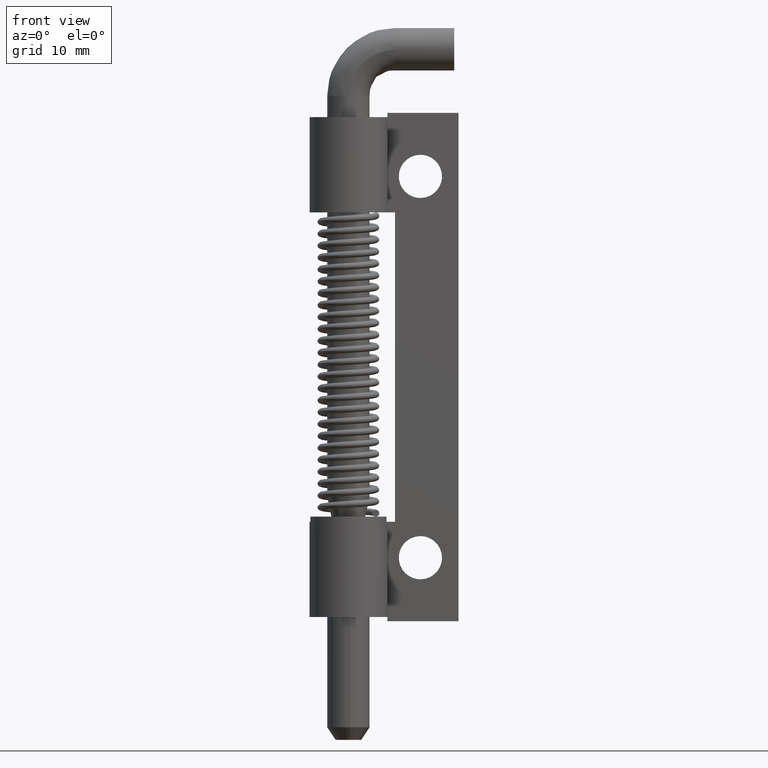
[diagram: clean part render]
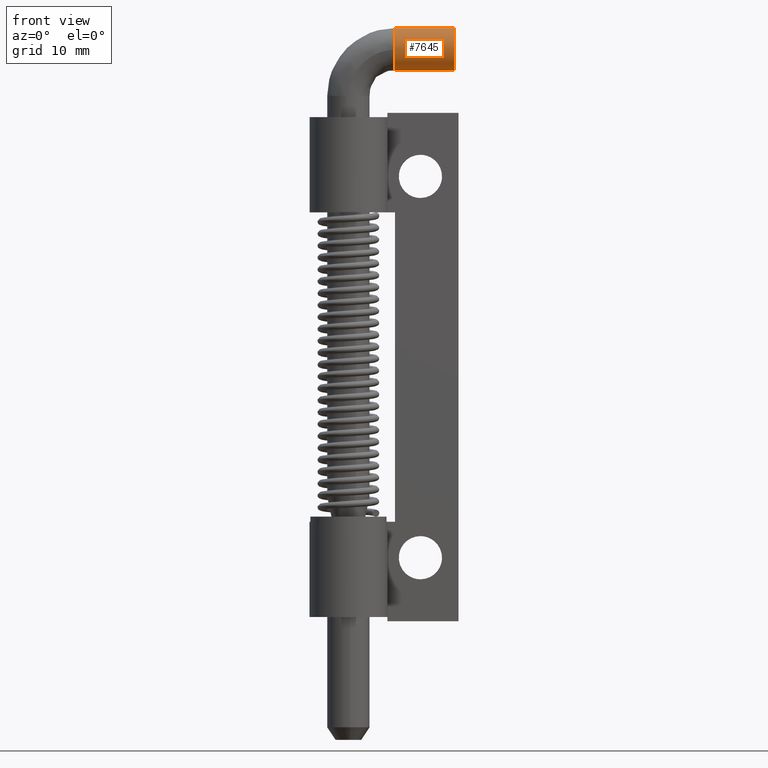
[diagram: same view with one face highlighted and labeled with its STEP entity id]
A machine part, front view. The second image highlights one B-rep face of the part: STEP entity #7645.
In plain terms, the highlighted face is a freeform B-spline surface patch.
Its self-contained STEP definition (entity closure, byte-faithful):
#7498=CARTESIAN_POINT('',(5.324999998981856,1.813435927530718,83.220886439234391));
#7499=CARTESIAN_POINT('',(5.324999998981857,0.092549488296334,85.034322366765110));
#7500=CARTESIAN_POINT('',(5.324999998981856,-1.720886439234384,83.313435927530719));
#7501=CARTESIAN_POINT('',(5.324999998981857,-3.534322366765102,81.592549488296328));
#7502=CARTESIAN_POINT('',(5.324999998981856,-1.813435927530718,79.779113560765609));
#7503=CARTESIAN_POINT('',(5.324999998981857,-0.092549488296334,77.965677633234890));
#7504=CARTESIAN_POINT('',(5.324999998981856,1.720886439234384,79.686564072469281));
#7505=CARTESIAN_POINT('',(12.679375000025461,1.813435927530718,83.220886439234391));
#7506=CARTESIAN_POINT('',(12.679375000025455,0.092549488296334,85.034322366765110));
#7507=CARTESIAN_POINT('',(12.679375000025461,-1.720886439234384,83.313435927530719));
#7508=CARTESIAN_POINT('',(12.679375000025455,-3.534322366765102,81.592549488296328));
#7509=CARTESIAN_POINT('',(12.679375000025461,-1.813435927530718,79.779113560765609));
#7510=CARTESIAN_POINT('',(12.679375000025455,-0.092549488296334,77.965677633234890));
#7511=CARTESIAN_POINT('',(12.679375000025461,1.720886439234384,79.686564072469281));
#7519=(BOUNDED_SURFACE()B_SPLINE_SURFACE(2,1,((#7498,#7505),(#7499,#7506),(#7500,#7507),(#7501,#7508),(#7502,#7509),(#7503,#7510),(#7504,#7511)),.UNSPECIFIED.,.F.,.F.,.U.)B_SPLINE_SURFACE_WITH_KNOTS((3,2,2,3),(2,2),(0.0,4.142135623730949,8.284271247461899,12.426406871192849),(0.0,7.354375001043600),.UNSPECIFIED.)GEOMETRIC_REPRESENTATION_ITEM()RATIONAL_B_SPLINE_SURFACE(((1.0,1.0),(0.707106781186548,0.707106781186548),(1.0,1.0),(0.707106781186548,0.707106781186548),(1.0,1.0),(0.707106781186548,0.707106781186548),(1.0,1.0)))REPRESENTATION_ITEM('')SURFACE());
#7520=CARTESIAN_POINT('',(12.499999999999980,1.813436689613406,83.220885636166088));
#7521=VERTEX_POINT('',#7520);
#7522=CARTESIAN_POINT('',(12.500000000000000,0.0,84.0));
#7523=VERTEX_POINT('',#7522);
#7524=CARTESIAN_POINT('',(12.499999999999984,1.813436689613406,83.220885636166088));
#7525=CARTESIAN_POINT('',(12.500000000000005,1.074085420649231,84.000000000000014));
#7526=CARTESIAN_POINT('',(12.500000000000000,0.0,84.0));
#7534=(BOUNDED_CURVE()B_SPLINE_CURVE(2,(#7524,#7525,#7526),.UNSPECIFIED.,.F.,.U.)B_SPLINE_CURVE_WITH_KNOTS((3,3),(0.871049459827730,1.0),.UNSPECIFIED.)CURVE()GEOMETRIC_REPRESENTATION_ITEM()RATIONAL_B_SPLINE_CURVE((0.853699666318492,0.848925044884842,1.0))REPRESENTATION_ITEM(''));
#7535=EDGE_CURVE('',#7521,#7523,#7534,.T.);
#7536=ORIENTED_EDGE('',*,*,#7535,.F.);
#7537=CARTESIAN_POINT('',(5.499999999682506,1.813436599580342,83.220885730502786));
#7538=VERTEX_POINT('',#7537);
#7539=CARTESIAN_POINT('',(5.499999999682506,1.813436599580342,83.220885730502786));
#7540=CARTESIAN_POINT('',(12.499999999999980,1.813436689613406,83.220885636166088));
#7541=QUASI_UNIFORM_CURVE('',1,(#7539,#7540),.UNSPECIFIED.,.F.,.U.);
#7542=EDGE_CURVE('',#7538,#7521,#7541,.T.);
#7543=ORIENTED_EDGE('',*,*,#7542,.F.);
#7544=CARTESIAN_POINT('',(5.500000000000100,0.0,84.0));
#7545=VERTEX_POINT('',#7544);
#7546=CARTESIAN_POINT('',(5.499999999682506,1.813436599580343,83.220885730502786));
#7547=CARTESIAN_POINT('',(5.500000000000100,1.074085921420028,83.999999999999986));
#7548=CARTESIAN_POINT('',(5.500000000000100,0.0,84.0));
#7556=(BOUNDED_CURVE()B_SPLINE_CURVE(2,(#7546,#7547,#7548),.UNSPECIFIED.,.F.,.U.)B_SPLINE_CURVE_WITH_KNOTS((3,3),(0.871049408789847,1.0),.UNSPECIFIED.)CURVE()GEOMETRIC_REPRESENTATION_ITEM()RATIONAL_B_SPLINE_CURVE((0.853699670098052,0.848924985090242,1.0))REPRESENTATION_ITEM(''));
#7557=EDGE_CURVE('',#7538,#7545,#7556,.T.);
#7558=ORIENTED_EDGE('',*,*,#7557,.T.);
#7559=CARTESIAN_POINT('',(5.499999999390528,-2.499210473186264,81.437174760517109));
#7560=VERTEX_POINT('',#7559);
#7561=CARTESIAN_POINT('',(5.500000000000100,0.0,84.0));
#7562=CARTESIAN_POINT('',(5.500000000000100,-2.500000000000000,84.000000000000014));
#7563=CARTESIAN_POINT('',(5.500000000000100,-2.500000000000000,81.500000000000000));
#7564=CARTESIAN_POINT('',(5.500000000000100,-2.500000000000000,81.468582418816538));
#7565=CARTESIAN_POINT('',(5.499999999390528,-2.499210473186264,81.437174760517109));
#7573=(BOUNDED_CURVE()B_SPLINE_CURVE(2,(#7561,#7562,#7563,#7564,#7565),.UNSPECIFIED.,.F.,.U.)B_SPLINE_CURVE_WITH_KNOTS((3,2,3),(0.0,0.250000000000000,0.254420108352658),.UNSPECIFIED.)CURVE()GEOMETRIC_REPRESENTATION_ITEM()RATIONAL_B_SPLINE_CURVE((1.0,0.707106781186548,1.0,0.994821520948344,0.989826157404769))REPRESENTATION_ITEM(''));
#7574=EDGE_CURVE('',#7545,#7560,#7573,.T.);
#7575=ORIENTED_EDGE('',*,*,#7574,.T.);
#7576=CARTESIAN_POINT('',(5.500000000000100,0.0,79.0));
#7577=VERTEX_POINT('',#7576);
#7578=CARTESIAN_POINT('',(5.499999999390528,-2.499210473186264,81.437174760517109));
#7579=CARTESIAN_POINT('',(5.500000000000100,-2.437944688744795,79.000000000000014));
#7580=CARTESIAN_POINT('',(5.500000000000100,0.0,79.0));
#7588=(BOUNDED_CURVE()B_SPLINE_CURVE(2,(#7578,#7579,#7580),.UNSPECIFIED.,.F.,.U.)B_SPLINE_CURVE_WITH_KNOTS((3,3),(0.254420108352658,0.500000000000000),.UNSPECIFIED.)CURVE()GEOMETRIC_REPRESENTATION_ITEM()RATIONAL_B_SPLINE_CURVE((0.989826157404769,0.712285260238204,1.0))REPRESENTATION_ITEM(''));
#7589=EDGE_CURVE('',#7560,#7577,#7588,.T.);
#7590=ORIENTED_EDGE('',*,*,#7589,.T.);
#7591=CARTESIAN_POINT('',(5.500000000000121,1.720885635331048,79.686563309594177));
#7592=VERTEX_POINT('',#7591);
#7593=CARTESIAN_POINT('',(5.500000000000100,0.0,79.0));
#7594=CARTESIAN_POINT('',(5.500000000000100,0.997398222604516,79.0));
#7595=CARTESIAN_POINT('',(5.500000000000121,1.720885635331048,79.686563309594177));
#7603=(BOUNDED_CURVE()B_SPLINE_CURVE(2,(#7593,#7594,#7595),.UNSPECIFIED.,.F.,.U.)B_SPLINE_CURVE_WITH_KNOTS((3,3),(0.500000000000000,0.621049459758238),.UNSPECIFIED.)CURVE()GEOMETRIC_REPRESENTATION_ITEM()RATIONAL_B_SPLINE_CURVE((1.0,0.858181736383121,0.853699666323638))REPRESENTATION_ITEM(''));
#7604=EDGE_CURVE('',#7577,#7592,#7603,.T.);
#7605=ORIENTED_EDGE('',*,*,#7604,.T.);
#7606=CARTESIAN_POINT('',(12.500000000000000,1.720885645016748,79.686563318785545));
#7607=VERTEX_POINT('',#7606);
#7608=CARTESIAN_POINT('',(5.500000000000121,1.720885635331048,79.686563309594177));
#7609=CARTESIAN_POINT('',(12.500000000000000,1.720885645016748,79.686563318785545));
#7610=QUASI_UNIFORM_CURVE('',1,(#7608,#7609),.UNSPECIFIED.,.F.,.U.);
#7611=EDGE_CURVE('',#7592,#7607,#7610,.T.);
#7612=ORIENTED_EDGE('',*,*,#7611,.T.);
#7613=CARTESIAN_POINT('',(12.500000000000000,0.0,79.0));
#7614=VERTEX_POINT('',#7613);
#7615=CARTESIAN_POINT('',(12.500000000000000,0.0,79.0));
#7616=CARTESIAN_POINT('',(12.500000000000002,0.997398230343510,79.0));
#7617=CARTESIAN_POINT('',(12.499999999999996,1.720885645016748,79.686563318785545));
#7625=(BOUNDED_CURVE()B_SPLINE_CURVE(2,(#7615,#7616,#7617),.UNSPECIFIED.,.F.,.U.)B_SPLINE_CURVE_WITH_KNOTS((3,3),(0.500000000000000,0.621049460564281),.UNSPECIFIED.)CURVE()GEOMETRIC_REPRESENTATION_ITEM()RATIONAL_B_SPLINE_CURVE((1.0,0.858181735438783,0.853699666263948))REPRESENTATION_ITEM(''));
#7626=EDGE_CURVE('',#7614,#7607,#7625,.T.);
#7627=ORIENTED_EDGE('',*,*,#7626,.F.);
#7628=CARTESIAN_POINT('',(12.500000000000000,0.0,84.0));
#7629=CARTESIAN_POINT('',(12.500000000000000,-2.500000000000000,84.000000000000014));
#7630=CARTESIAN_POINT('',(12.500000000000000,-2.500000000000000,81.500000000000000));
#7631=CARTESIAN_POINT('',(12.500000000000000,-2.500000000000000,79.0));
#7632=CARTESIAN_POINT('',(12.500000000000000,0.0,79.0));
#7640=(BOUNDED_CURVE()B_SPLINE_CURVE(2,(#7628,#7629,#7630,#7631,#7632),.UNSPECIFIED.,.F.,.U.)B_SPLINE_CURVE_WITH_KNOTS((3,2,3),(0.0,0.250000000000000,0.500000000000000),.UNSPECIFIED.)CURVE()GEOMETRIC_REPRESENTATION_ITEM()RATIONAL_B_SPLINE_CURVE((1.0,0.707106781186548,1.0,0.707106781186548,1.0))REPRESENTATION_ITEM(''));
#7641=EDGE_CURVE('',#7523,#7614,#7640,.T.);
#7642=ORIENTED_EDGE('',*,*,#7641,.F.);
#7643=EDGE_LOOP('',(#7536,#7543,#7558,#7575,#7590,#7605,#7612,#7627,#7642));
#7644=FACE_OUTER_BOUND('',#7643,.T.);
#7645=ADVANCED_FACE('',(#7644),#7519,.T.);